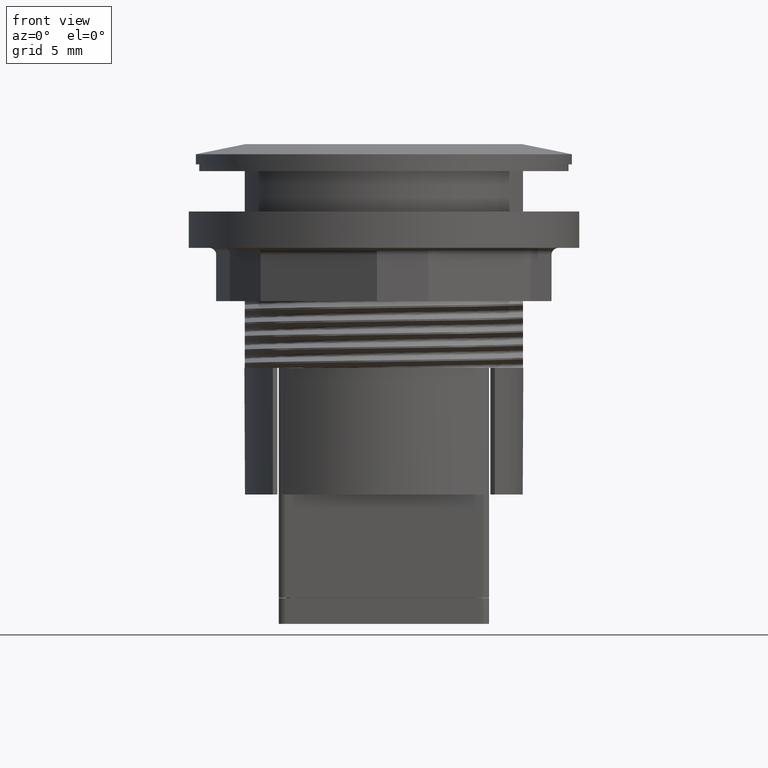
[diagram: clean part render]
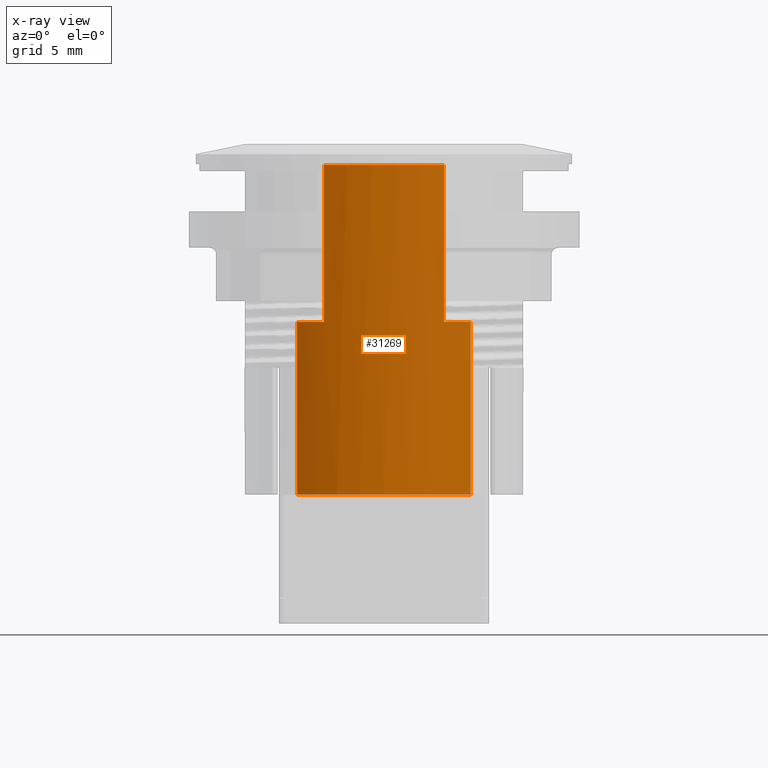
[diagram: x-ray — body ghosted, one internal face saturated and labeled with its STEP entity id]
A machine part, front view, then the same camera in x-ray: the body is ghosted and one INTERNAL B-rep face — a face not visible from any outside direction — is saturated and labeled: STEP entity #31269.
In plain terms, the highlighted cylindrical surface (partial cylindrical patch) has radius 9.25 mm, axis along (0, 0, 1).
Its self-contained STEP definition (entity closure, byte-faithful):
#585=CYLINDRICAL_SURFACE('',#32868,0.925);
#963=CIRCLE('',#32867,0.925);
#964=CIRCLE('',#32869,0.925);
#965=CIRCLE('',#32870,0.925);
#966=CIRCLE('',#32871,0.925);
#1842=FACE_OUTER_BOUND('',#3414,.T.);
#3414=EDGE_LOOP('',(#19364,#19365,#19366,#19367,#19368,#19369,#19370,#19371));
#5054=LINE('',#43834,#8403);
#5059=LINE('',#43845,#8408);
#5061=LINE('',#43855,#8410);
#5062=LINE('',#43858,#8411);
#8403=VECTOR('',#35407,1.);
#8408=VECTOR('',#35416,1.);
#8410=VECTOR('',#35428,1.);
#8411=VECTOR('',#35431,1.);
#11749=VERTEX_POINT('',#43827);
#11752=VERTEX_POINT('',#43832);
#11755=VERTEX_POINT('',#43842);
#11756=VERTEX_POINT('',#43844);
#11757=VERTEX_POINT('',#43850);
#11758=VERTEX_POINT('',#43852);
#11759=VERTEX_POINT('',#43854);
#11760=VERTEX_POINT('',#43856);
#14730=EDGE_CURVE('',#11752,#11749,#5054,.T.);
#14735=EDGE_CURVE('',#11756,#11755,#5059,.T.);
#14737=EDGE_CURVE('',#11752,#11756,#963,.T.);
#14738=EDGE_CURVE('',#11757,#11749,#964,.T.);
#14739=EDGE_CURVE('',#11755,#11758,#965,.T.);
#14740=EDGE_CURVE('',#11759,#11758,#5061,.T.);
#14741=EDGE_CURVE('',#11760,#11759,#966,.T.);
#14742=EDGE_CURVE('',#11760,#11757,#5062,.T.);
#19364=ORIENTED_EDGE('',*,*,#14738,.T.);
#19365=ORIENTED_EDGE('',*,*,#14730,.F.);
#19366=ORIENTED_EDGE('',*,*,#14737,.T.);
#19367=ORIENTED_EDGE('',*,*,#14735,.T.);
#19368=ORIENTED_EDGE('',*,*,#14739,.T.);
#19369=ORIENTED_EDGE('',*,*,#14740,.F.);
#19370=ORIENTED_EDGE('',*,*,#14741,.F.);
#19371=ORIENTED_EDGE('',*,*,#14742,.T.);
#31269=ADVANCED_FACE('',(#1842),#585,.T.);
#32867=AXIS2_PLACEMENT_3D('',#43848,#35420,#35421);
#32868=AXIS2_PLACEMENT_3D('',#43849,#35422,#35423);
#32869=AXIS2_PLACEMENT_3D('',#43851,#35424,#35425);
#32870=AXIS2_PLACEMENT_3D('',#43853,#35426,#35427);
#32871=AXIS2_PLACEMENT_3D('',#43857,#35429,#35430);
#35407=DIRECTION('',(0.,0.,1.));
#35416=DIRECTION('',(0.,0.,1.));
#35420=DIRECTION('center_axis',(0.,0.,1.));
#35421=DIRECTION('ref_axis',(-0.697297297297297,-0.716782030454088,0.));
#35422=DIRECTION('center_axis',(0.,0.,1.));
#35423=DIRECTION('ref_axis',(-0.697297297297297,-0.716782030454088,0.));
#35424=DIRECTION('center_axis',(1.37079722022855E-17,2.14421934488177E-33,
-1.));
#35425=DIRECTION('ref_axis',(-0.697297297297297,-0.716782030454088,-9.55853196808016E-18));
#35426=DIRECTION('center_axis',(1.37079722022855E-17,2.14421934488177E-33,
-1.));
#35427=DIRECTION('ref_axis',(-0.697297297297297,-0.716782030454088,-9.55853196808016E-18));
#35428=DIRECTION('',(0.,0.,-1.));
#35429=DIRECTION('center_axis',(0.,0.,1.));
#35430=DIRECTION('ref_axis',(-0.697297297297297,-0.716782030454088,0.));
#35431=DIRECTION('',(0.,0.,-1.));
#43827=CARTESIAN_POINT('',(-0.645,-0.663023378170031,-0.3));
#43832=CARTESIAN_POINT('',(-0.645,-0.663023378170031,-1.58));
#43834=CARTESIAN_POINT('',(-0.645,-0.663023378170031,-1.58));
#43842=CARTESIAN_POINT('',(0.645,-0.663023378170032,-0.3));
#43844=CARTESIAN_POINT('',(0.645,-0.663023378170032,-1.58));
#43845=CARTESIAN_POINT('',(0.645,-0.663023378170032,-1.58));
#43848=CARTESIAN_POINT('Origin',(0.,0.,-1.58));
#43849=CARTESIAN_POINT('Origin',(0.,0.,-1.58));
#43850=CARTESIAN_POINT('',(-0.445930062306778,-0.810414325842698,-0.3));
#43851=CARTESIAN_POINT('Origin',(0.,0.,-0.3));
#43852=CARTESIAN_POINT('',(0.445930062306778,-0.810414325842697,-0.3));
#43853=CARTESIAN_POINT('Origin',(0.,0.,-0.3));
#43854=CARTESIAN_POINT('',(0.445930062306778,-0.810414325842698,0.865));
#43855=CARTESIAN_POINT('',(0.445930062306778,-0.810414325842698,0.9));
#43856=CARTESIAN_POINT('',(-0.445930062306778,-0.810414325842699,0.865));
#43857=CARTESIAN_POINT('Origin',(0.,0.,0.865));
#43858=CARTESIAN_POINT('',(-0.445930062306778,-0.810414325842698,0.9));